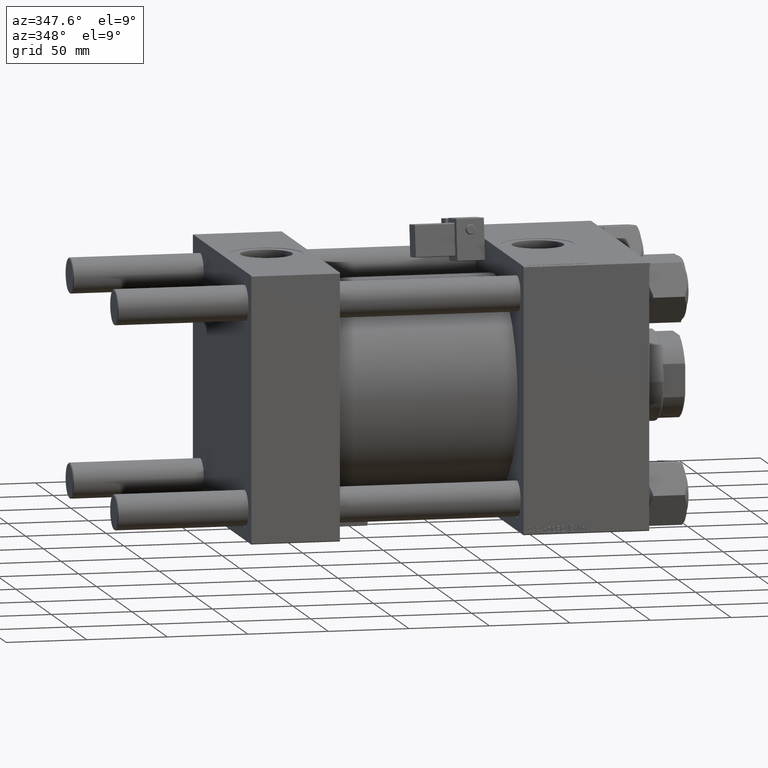
[diagram: clean part render]
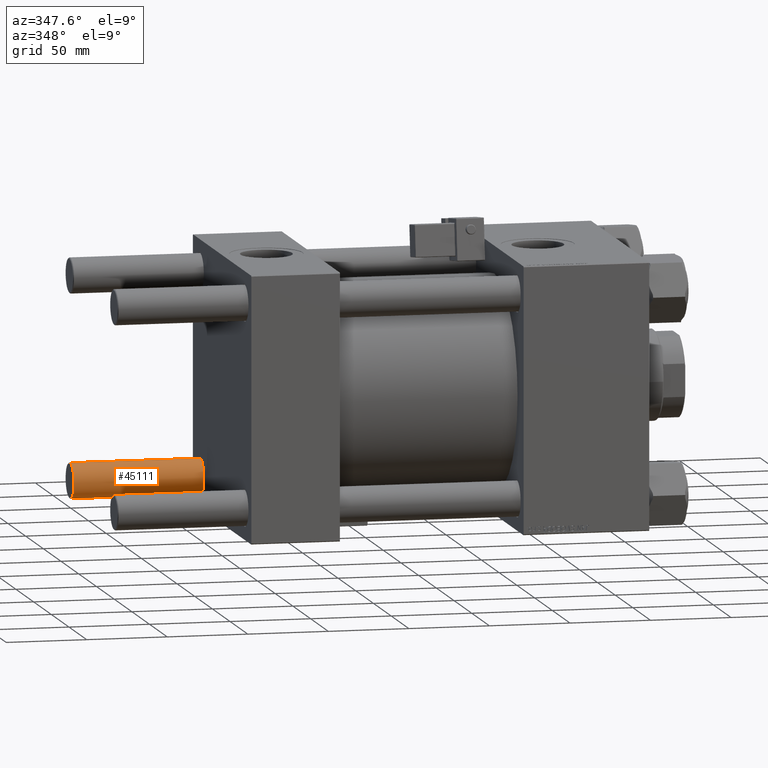
[diagram: same view with one face highlighted and labeled with its STEP entity id]
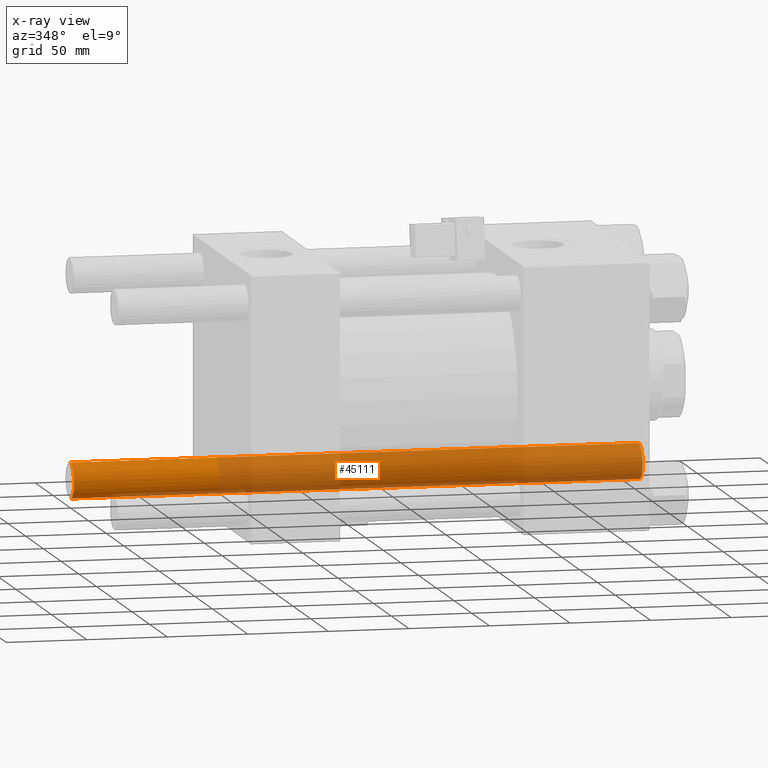
[diagram: x-ray of the same camera — body ghosted, the highlighted face saturated]
A machine part, auxiliary view. The second image highlights one B-rep face of the part: STEP entity #45111.
The next image is the same camera in x-ray: the body ghosted, the highlighted face saturated — about 76% of this face is hidden behind the body in this view.
In plain terms, the highlighted cylindrical surface (edge-blend (fillet) strip) has radius 11 mm, axis along (1, 0, -0).
Its self-contained STEP definition (entity closure, byte-faithful):
#3055 = DIRECTION ( 'NONE',  ( 1.000000000000000000, 0.000000000000000000, 0.000000000000000000 ) ) ;
#3921 = DIRECTION ( 'NONE',  ( -0.000000000000000000, -0.000000000000000000, -1.000000000000000000 ) ) ;
#4369 = DIRECTION ( 'NONE',  ( 1.000000000000000000, 0.000000000000000000, 0.000000000000000000 ) ) ;
#7835 = DIRECTION ( 'NONE',  ( 0.000000000000000000, 0.000000000000000000, -1.000000000000000000 ) ) ;
#8132 = DIRECTION ( 'NONE',  ( -0.000000000000000000, -0.000000000000000000, -1.000000000000000000 ) ) ;
#8873 = CIRCLE ( 'NONE', #34424, 11.00000000000000000 ) ;
#9620 = EDGE_LOOP ( 'NONE', ( #33986, #29284, #35812, #20055 ) ) ;
#10086 = CARTESIAN_POINT ( 'NONE',  ( -11.00000000000000000, 0.000000000000000000, 0.5000000000001114664 ) ) ;
#10750 = LINE ( 'NONE', #32044, #44269 ) ;
#12304 = CARTESIAN_POINT ( 'NONE',  ( 0.000000000000000000, 0.000000000000000000, 0.5000000000001114664 ) ) ;
#12384 = VECTOR ( 'NONE', #8132, 1000.000000000000000 ) ;
#16066 = VERTEX_POINT ( 'NONE', #10086 ) ;
#17186 = CARTESIAN_POINT ( 'NONE',  ( -11.00000000000000000, 0.000000000000000000, 353.5000000000000568 ) ) ;
#18115 = AXIS2_PLACEMENT_3D ( 'NONE', #44338, #7835, #4369 ) ;
#18637 = EDGE_CURVE ( 'NONE', #16066, #24030, #8873, .T. ) ;
#19447 = VERTEX_POINT ( 'NONE', #42773 ) ;
#20055 = ORIENTED_EDGE ( 'NONE', *, *, #18637, .T. ) ;
#21174 = CARTESIAN_POINT ( 'NONE',  ( -11.00000000000000000, 0.000000000000000000, 354.0000000000000000 ) ) ;
#23000 = DIRECTION ( 'NONE',  ( -0.000000000000000000, -0.000000000000000000, -1.000000000000000000 ) ) ;
#24030 = VERTEX_POINT ( 'NONE', #29019 ) ;
#25605 = EDGE_CURVE ( 'NONE', #36673, #16066, #29167, .T. ) ;
#28269 = AXIS2_PLACEMENT_3D ( 'NONE', #40677, #3921, #36404 ) ;
#29019 = CARTESIAN_POINT ( 'NONE',  ( 11.00000000000000000, 1.347111479062088405E-15, 0.5000000000001114664 ) ) ;
#29167 = LINE ( 'NONE', #21174, #12384 ) ;
#29284 = ORIENTED_EDGE ( 'NONE', *, *, #46880, .T. ) ;
#32044 = CARTESIAN_POINT ( 'NONE',  ( 11.00000000000000000, 1.347111479062088405E-15, 354.0000000000000000 ) ) ;
#33062 = DIRECTION ( 'NONE',  ( -0.000000000000000000, -0.000000000000000000, 1.000000000000000000 ) ) ;
#33986 = ORIENTED_EDGE ( 'NONE', *, *, #41043, .F. ) ;
#34424 = AXIS2_PLACEMENT_3D ( 'NONE', #12304, #33062, #3055 ) ;
#35812 = ORIENTED_EDGE ( 'NONE', *, *, #25605, .T. ) ;
#36404 = DIRECTION ( 'NONE',  ( -1.000000000000000000, 0.000000000000000000, 0.000000000000000000 ) ) ;
#36673 = VERTEX_POINT ( 'NONE', #17186 ) ;
#40677 = CARTESIAN_POINT ( 'NONE',  ( 0.000000000000000000, 0.000000000000000000, 354.0000000000000000 ) ) ;
#41043 = EDGE_CURVE ( 'NONE', #19447, #24030, #10750, .T. ) ;
#42773 = CARTESIAN_POINT ( 'NONE',  ( 11.00000000000000000, 1.347111479062088405E-15, 353.5000000000000568 ) ) ;
#44269 = VECTOR ( 'NONE', #23000, 1000.000000000000000 ) ;
#44338 = CARTESIAN_POINT ( 'NONE',  ( 0.000000000000000000, 0.000000000000000000, 353.5000000000000568 ) ) ;
#45111 = ADVANCED_FACE ( 'NONE', ( #52649 ), #48402, .T. ) ;
#46880 = EDGE_CURVE ( 'NONE', #19447, #36673, #48752, .T. ) ;
#48402 = CYLINDRICAL_SURFACE ( 'NONE', #28269, 11.00000000000000000 ) ;
#48752 = CIRCLE ( 'NONE', #18115, 11.00000000000000000 ) ;
#52649 = FACE_OUTER_BOUND ( 'NONE', #9620, .T. ) ;